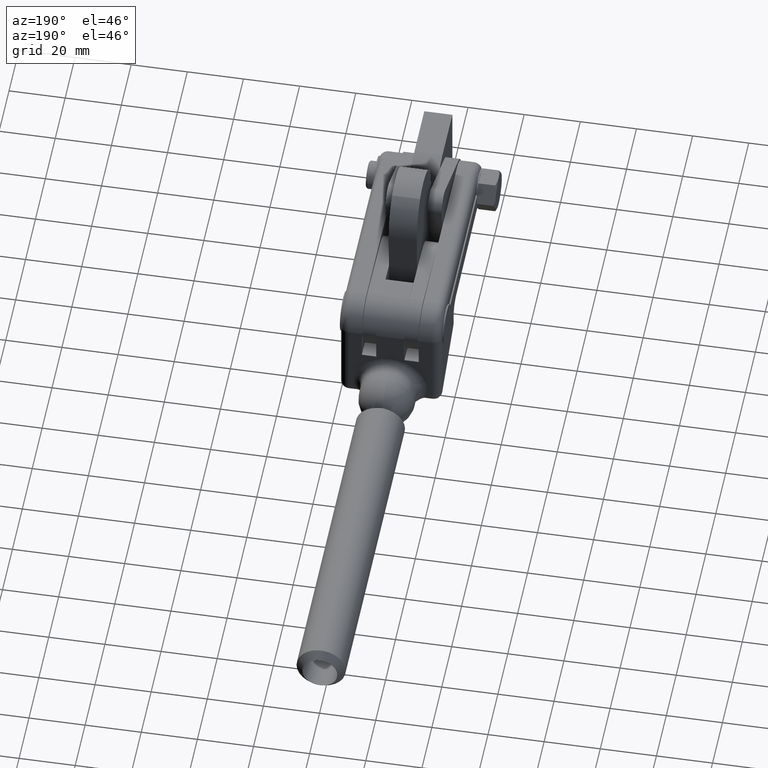
[diagram: clean part render]
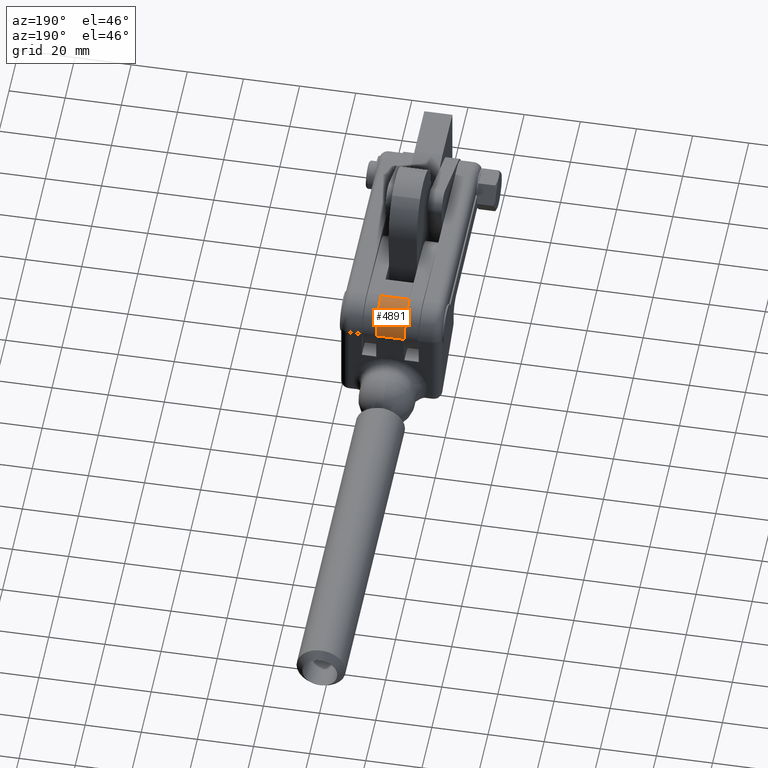
[diagram: same view with one face highlighted and labeled with its STEP entity id]
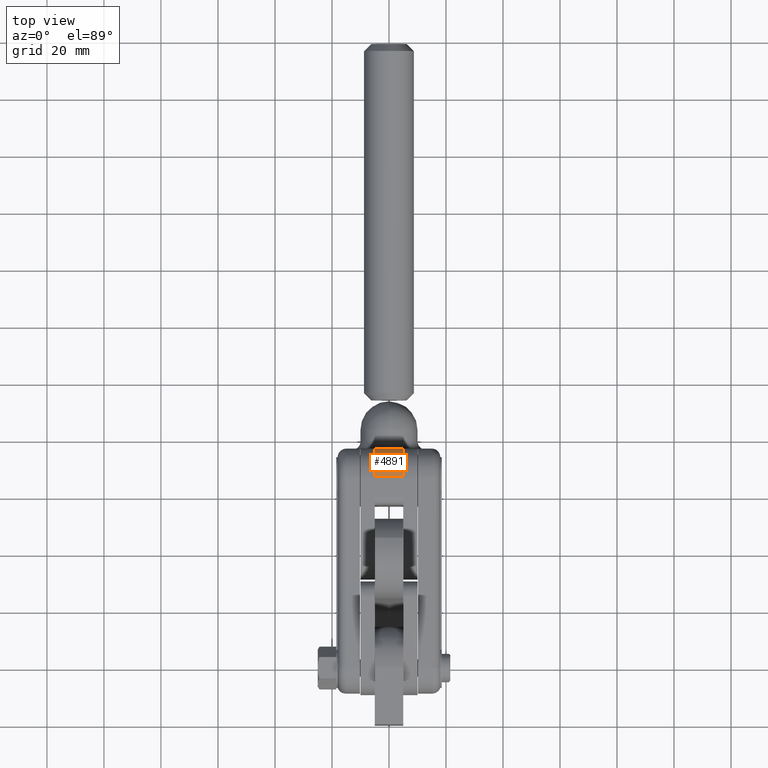
[diagram: same view with one face highlighted and labeled with its STEP entity id]
A machine part, auxiliary view. The second image highlights one B-rep face of the part: STEP entity #4891.
A second angle (top view) of the same face is appended — the face is thin or edge-on in the first view.
In plain terms, the highlighted cylindrical surface (edge-blend (fillet) strip) has radius 10 mm, axis along (-1, -0, -0).
Its self-contained STEP definition (entity closure, byte-faithful):
#85 = CARTESIAN_POINT ( 'NONE',  ( 18.00000000000000000, 97.00000000000000000, -9.392192592361292200E-015 ) ) ;
#370 = CARTESIAN_POINT ( 'NONE',  ( 5.000000000000006200, 87.00000000000001400, -6.559423143537301800E-015 ) ) ;
#374 = LINE ( 'NONE', #85, #1830 ) ;
#531 = CARTESIAN_POINT ( 'NONE',  ( -4.999999999999997300, 87.00000000000001400, -6.559423143537301800E-015 ) ) ;
#636 = CARTESIAN_POINT ( 'NONE',  ( 5.000000000000006200, 97.00000000000000000, -9.392192592361292200E-015 ) ) ;
#854 = VECTOR ( 'NONE', #2298, 1000.000000000000000 ) ;
#975 = EDGE_CURVE ( 'NONE', #6687, #6626, #374, .T. ) ;
#1218 = EDGE_LOOP ( 'NONE', ( #3543, #4317, #5733, #3450 ) ) ;
#1646 = AXIS2_PLACEMENT_3D ( 'NONE', #4073, #3067, #2111 ) ;
#1671 = DIRECTION ( 'NONE',  ( -1.000000000000000000, 0.0000000000000000000, 1.150169031785065500E-016 ) ) ;
#1830 = VECTOR ( 'NONE', #2140, 1000.000000000000000 ) ;
#1985 = CYLINDRICAL_SURFACE ( 'NONE', #1646, 9.999999999999998200 ) ;
#2111 = DIRECTION ( 'NONE',  ( 0.0000000000000000000, 0.0000000000000000000, 1.000000000000000000 ) ) ;
#2140 = DIRECTION ( 'NONE',  ( -1.000000000000000000, -0.0000000000000000000, -0.0000000000000000000 ) ) ;
#2157 = AXIS2_PLACEMENT_3D ( 'NONE', #531, #1671, #5366 ) ;
#2275 = EDGE_CURVE ( 'NONE', #4930, #6626, #3876, .T. ) ;
#2298 = DIRECTION ( 'NONE',  ( -1.000000000000000000, -0.0000000000000000000, -0.0000000000000000000 ) ) ;
#3067 = DIRECTION ( 'NONE',  ( -1.000000000000000000, -0.0000000000000000000, -0.0000000000000000000 ) ) ;
#3169 = VERTEX_POINT ( 'NONE', #5734 ) ;
#3450 = ORIENTED_EDGE ( 'NONE', *, *, #2275, .F. ) ;
#3543 = ORIENTED_EDGE ( 'NONE', *, *, #4269, .F. ) ;
#3592 = CARTESIAN_POINT ( 'NONE',  ( 18.00000000000000000, 87.00000000000001400, 9.999999999999991100 ) ) ;
#3876 = CIRCLE ( 'NONE', #2157, 9.999999999999998200 ) ;
#3939 = AXIS2_PLACEMENT_3D ( 'NONE', #370, #5799, #4746 ) ;
#4073 = CARTESIAN_POINT ( 'NONE',  ( 18.00000000000000000, 87.00000000000001400, -6.559423143537301800E-015 ) ) ;
#4269 = EDGE_CURVE ( 'NONE', #3169, #4930, #6449, .T. ) ;
#4317 = ORIENTED_EDGE ( 'NONE', *, *, #4756, .F. ) ;
#4746 = DIRECTION ( 'NONE',  ( -8.673617379884036700E-017, 0.0000000000000000000, -1.000000000000000000 ) ) ;
#4756 = EDGE_CURVE ( 'NONE', #6687, #3169, #6526, .T. ) ;
#4891 = ADVANCED_FACE ( 'NONE', ( #6358 ), #1985, .T. ) ;
#4930 = VERTEX_POINT ( 'NONE', #4934 ) ;
#4934 = CARTESIAN_POINT ( 'NONE',  ( -4.999999999999996400, 87.00000000000001400, 9.999999999999991100 ) ) ;
#5366 = DIRECTION ( 'NONE',  ( 8.673617379884036700E-017, 0.0000000000000000000, 1.000000000000000000 ) ) ;
#5733 = ORIENTED_EDGE ( 'NONE', *, *, #975, .T. ) ;
#5734 = CARTESIAN_POINT ( 'NONE',  ( 5.000000000000007100, 87.00000000000001400, 9.999999999999991100 ) ) ;
#5796 = CARTESIAN_POINT ( 'NONE',  ( -4.999999999999997300, 97.00000000000000000, -9.392192592361292200E-015 ) ) ;
#5799 = DIRECTION ( 'NONE',  ( 1.000000000000000000, 0.0000000000000000000, -1.150169031785065500E-016 ) ) ;
#6358 = FACE_OUTER_BOUND ( 'NONE', #1218, .T. ) ;
#6449 = LINE ( 'NONE', #3592, #854 ) ;
#6526 = CIRCLE ( 'NONE', #3939, 9.999999999999998200 ) ;
#6626 = VERTEX_POINT ( 'NONE', #5796 ) ;
#6687 = VERTEX_POINT ( 'NONE', #636 ) ;